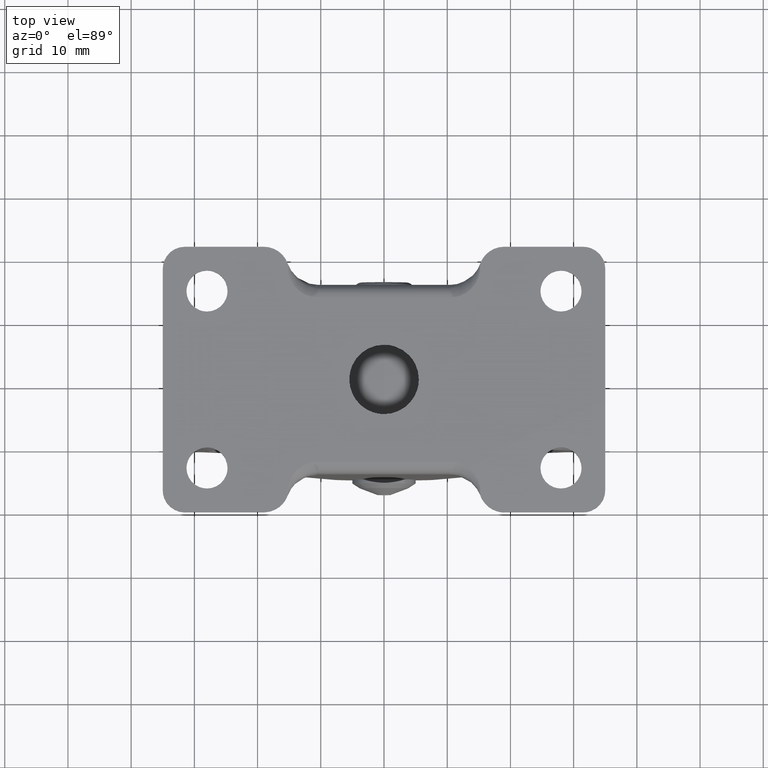
[diagram: clean part render]
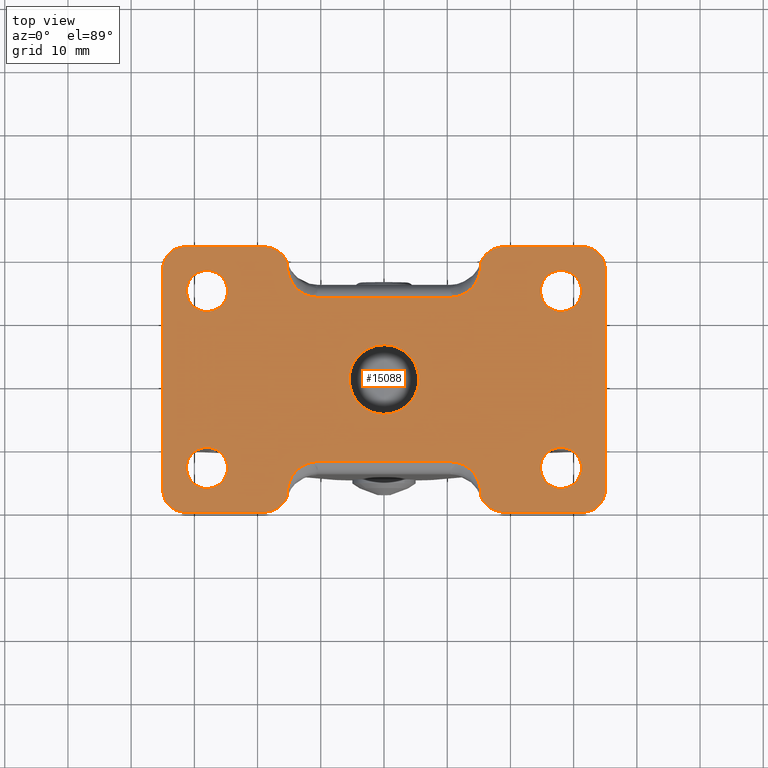
[diagram: same view with one face highlighted and labeled with its STEP entity id]
A machine part, top view. The second image highlights one B-rep face of the part: STEP entity #15088.
In plain terms, the highlighted face is a freeform B-spline surface patch.
Its self-contained STEP definition (entity closure, byte-faithful):
#10203=CARTESIAN_POINT('',(-30.098662021766291,16.481556315056888,54.500000000000000));
#10204=VERTEX_POINT('',#10203);
#10210=CARTESIAN_POINT('',(-31.250000000000000,13.999999999999821,54.500000000000000));
#10211=VERTEX_POINT('',#10210);
#10212=CARTESIAN_POINT('',(-30.098662021766291,16.481556315056888,54.500000000000000));
#10213=CARTESIAN_POINT('',(-30.289593631993519,16.320153419633229,54.500000000000142));
#10214=CARTESIAN_POINT('',(-30.623756243070339,15.963782783558701,54.499999999999908));
#10215=CARTESIAN_POINT('',(-30.974919471281559,15.363699450156201,54.499999999999993));
#10216=CARTESIAN_POINT('',(-31.197123592528381,14.705890184182140,54.499999999999957));
#10217=CARTESIAN_POINT('',(-31.250053086712541,14.250011075617349,54.500000000000057));
#10218=CARTESIAN_POINT('',(-31.250000000000000,13.999999999999821,54.500000000000000));
#10219=B_SPLINE_CURVE_WITH_KNOTS('',3,(#10212,#10213,#10214,#10215,#10216,#10217,#10218),.UNSPECIFIED.,.F.,.U.,(4,1,1,1,4),(0.000000054427843,0.750026817474935,1.455906141507848,2.073600944400972,2.823627226279340),.UNSPECIFIED.);
#10220=EDGE_CURVE('',#10204,#10211,#10219,.T.);
#10222=CARTESIAN_POINT('',(-27.999997487336589,10.750000000000790,54.500000000000000));
#10223=VERTEX_POINT('',#10222);
#10224=CARTESIAN_POINT('',(-31.250000000000000,13.999999999999821,54.500000000000000));
#10225=CARTESIAN_POINT('',(-31.250132946166818,13.680917081636450,54.500000000000107));
#10226=CARTESIAN_POINT('',(-31.163147950713739,13.096040372691871,54.499999999999879));
#10227=CARTESIAN_POINT('',(-30.837456642039761,12.361278064072870,54.500000000000078));
#10228=CARTESIAN_POINT('',(-30.455429074120708,11.846293969000479,54.499999999999957));
#10229=CARTESIAN_POINT('',(-30.011329752884709,11.423456549288680,54.499999999999979));
#10230=CARTESIAN_POINT('',(-29.428346941402900,11.044077837957641,54.500000000000142));
#10231=CARTESIAN_POINT('',(-28.717910768038760,10.799689379102940,54.499999999999758));
#10232=CARTESIAN_POINT('',(-28.212696035304649,10.749990130027840,54.500000000000348));
#10233=CARTESIAN_POINT('',(-27.999997487336589,10.750000000000790,54.500000000000000));
#10234=B_SPLINE_CURVE_WITH_KNOTS('',3,(#10224,#10225,#10226,#10227,#10228,#10229,#10230,#10231,#10232,#10233),.UNSPECIFIED.,.F.,.U.,(4,1,1,1,1,1,1,4),(0.000000086692860,0.957223040980363,1.754939809535310,2.393082988724874,2.871659602705686,3.589599197517273,4.467092946224253,5.105217585302628),.UNSPECIFIED.);
#10235=EDGE_CURVE('',#10211,#10223,#10234,.T.);
#10237=CARTESIAN_POINT('',(-24.750000000000000,13.999999999999821,54.500000000000000));
#10238=VERTEX_POINT('',#10237);
#10239=CARTESIAN_POINT('',(-27.999997487336589,10.750000000000790,54.500000000000000));
#10240=CARTESIAN_POINT('',(-27.734109334711331,10.749946935414020,54.499999999999972));
#10241=CARTESIAN_POINT('',(-27.202347701059281,10.815596493992571,54.500000000000050));
#10242=CARTESIAN_POINT('',(-26.402476081171191,11.124070894893521,54.500000000000050));
#10243=CARTESIAN_POINT('',(-25.754824180438249,11.604377611920910,54.499999999999943));
#10244=CARTESIAN_POINT('',(-25.195437662629850,12.285984790026649,54.500000000000021));
#10245=CARTESIAN_POINT('',(-24.836604796410661,13.069352896952170,54.500000000000007));
#10246=CARTESIAN_POINT('',(-24.749931761451851,13.707532265902350,54.499999999999972));
#10247=CARTESIAN_POINT('',(-24.750000000000000,13.999999999999821,54.500000000000000));
#10248=B_SPLINE_CURVE_WITH_KNOTS('',3,(#10239,#10240,#10241,#10242,#10243,#10244,#10245,#10246,#10247),.UNSPECIFIED.,.F.,.U.,(4,1,1,1,1,1,4),(0.000000090141262,0.797675192338383,1.595393230182955,2.552607427601551,3.190731714922657,4.227772132547955,5.105214752874685),.UNSPECIFIED.);
#10249=EDGE_CURVE('',#10223,#10238,#10248,.T.);
#10251=CARTESIAN_POINT('',(-25.642533843847598,16.237152038890638,54.500000000000000));
#10252=VERTEX_POINT('',#10251);
#10253=CARTESIAN_POINT('',(-24.750000000000000,13.999999999999821,54.500000000000000));
#10254=CARTESIAN_POINT('',(-24.749890455011339,14.308445242736830,54.500000000000078));
#10255=CARTESIAN_POINT('',(-24.823738256325989,14.822429354224051,54.499999999999957));
#10256=CARTESIAN_POINT('',(-25.129937215368091,15.589805069030810,54.500000000000050));
#10257=CARTESIAN_POINT('',(-25.430108791369960,16.013502333321259,54.499999999999950));
#10258=CARTESIAN_POINT('',(-25.642533843847598,16.237152038890638,54.500000000000000));
#10259=B_SPLINE_CURVE_WITH_KNOTS('',3,(#10253,#10254,#10255,#10256,#10257,#10258),.UNSPECIFIED.,.F.,.U.,(4,1,1,4),(0.000000030010311,0.925324171776659,1.542188701382070,2.467516988965990),.UNSPECIFIED.);
#10260=EDGE_CURVE('',#10238,#10252,#10259,.T.);
#10344=CARTESIAN_POINT('',(-28.000002512663450,17.249999999998849,54.500000000000000));
#10345=VERTEX_POINT('',#10344);
#10346=CARTESIAN_POINT('',(-25.642533843847598,16.237152038890638,54.500000000000000));
#10347=CARTESIAN_POINT('',(-25.888266182406429,16.496416521414261,54.499999999999922));
#10348=CARTESIAN_POINT('',(-26.355205525192819,16.848508239658891,54.500000000000142));
#10349=CARTESIAN_POINT('',(-27.175795817750540,17.176630664013409,54.499999999999822));
#10350=CARTESIAN_POINT('',(-27.697762706351071,17.250110710179769,54.500000000000092));
#10351=CARTESIAN_POINT('',(-28.000002512663450,17.249999999998849,54.500000000000000));
#10352=B_SPLINE_CURVE_WITH_KNOTS('',3,(#10346,#10347,#10348,#10349,#10350,#10351),.UNSPECIFIED.,.F.,.U.,(4,1,1,4),(0.000000041698240,1.071577884531071,1.730981596994258,2.637701625867006),.UNSPECIFIED.);
#10353=EDGE_CURVE('',#10252,#10345,#10352,.T.);
#10355=CARTESIAN_POINT('',(-28.000002512663450,17.249999999998849,54.500000000000000));
#10356=CARTESIAN_POINT('',(-28.213891865215491,17.250021008957020,54.499999999999922));
#10357=CARTESIAN_POINT('',(-28.665429299460911,17.205284996907409,54.500000000000107));
#10358=CARTESIAN_POINT('',(-29.394714337322149,16.974019853038339,54.499999999999929));
#10359=CARTESIAN_POINT('',(-29.862825961016750,16.681161505349142,54.499999999999929));
#10360=CARTESIAN_POINT('',(-30.098662021766291,16.481556315056888,54.500000000000000));
#10361=B_SPLINE_CURVE_WITH_KNOTS('',3,(#10355,#10356,#10357,#10358,#10359,#10360),.UNSPECIFIED.,.F.,.U.,(4,1,1,4),(0.000000046549489,0.641682526783467,1.354640293100347,2.281526228236786),.UNSPECIFIED.);
#10362=EDGE_CURVE('',#10345,#10204,#10361,.T.);
#10408=CARTESIAN_POINT('',(-3.551581487506738,4.199556432505808,54.500000000000000));
#10409=VERTEX_POINT('',#10408);
#10415=CARTESIAN_POINT('',(-5.500000000000000,0.0,54.500000000000000));
#10416=VERTEX_POINT('',#10415);
#10417=CARTESIAN_POINT('',(-3.551581487506738,4.199556432505808,54.500000000000000));
#10418=CARTESIAN_POINT('',(-3.817645853050713,3.974587681270802,54.500000000000007));
#10419=CARTESIAN_POINT('',(-4.324278277972796,3.455982112999390,54.500000000000000));
#10420=CARTESIAN_POINT('',(-4.911072461849057,2.554402693640873,54.499999999999979));
#10421=CARTESIAN_POINT('',(-5.374853061112885,1.393595585521495,54.500000000000078));
#10422=CARTESIAN_POINT('',(-5.500203988526193,0.522665930709427,54.499999999999943));
#10423=CARTESIAN_POINT('',(-5.500000000000000,0.0,54.500000000000000));
#10424=B_SPLINE_CURVE_WITH_KNOTS('',3,(#10417,#10418,#10419,#10420,#10421,#10422,#10423),.UNSPECIFIED.,.F.,.U.,(4,1,1,1,4),(0.000000056132643,1.045282946267310,2.165235440639549,3.210511556109384,4.778445867127006),.UNSPECIFIED.);
#10425=EDGE_CURVE('',#10409,#10416,#10424,.T.);
#10427=CARTESIAN_POINT('',(0.000001951524393,-5.499999999999654,54.500000000000007));
#10428=VERTEX_POINT('',#10427);
#10429=CARTESIAN_POINT('',(-5.500000000000000,0.0,54.500000000000000));
#10430=CARTESIAN_POINT('',(-5.500082614784264,-0.427467003456180,54.500000000000092));
#10431=CARTESIAN_POINT('',(-5.397222799853794,-1.304883476031741,54.499999999999972));
#10432=CARTESIAN_POINT('',(-4.954989680161406,-2.494772609935065,54.499999999999829));
#10433=CARTESIAN_POINT('',(-4.294954931975312,-3.495688828122551,54.500000000000171));
#10434=CARTESIAN_POINT('',(-3.607561025024969,-4.183032819444215,54.499999999999531));
#10435=CARTESIAN_POINT('',(-2.840281986038718,-4.737622403526375,54.500000000000362));
#10436=CARTESIAN_POINT('',(-2.072956440565853,-5.123874331680763,54.499999999999737));
#10437=CARTESIAN_POINT('',(-1.079886826557474,-5.425093989387877,54.499999999999943));
#10438=CARTESIAN_POINT('',(-0.404974744698217,-5.500080286451038,54.500000000000099));
#10439=CARTESIAN_POINT('',(0.000001951524393,-5.499999999999654,54.500000000000007));
#10440=B_SPLINE_CURVE_WITH_KNOTS('',3,(#10429,#10430,#10431,#10432,#10433,#10434,#10435,#10436,#10437,#10438,#10439),.UNSPECIFIED.,.F.,.U.,(4,1,1,1,1,1,1,1,4),(0.000000158819677,1.282395314202433,2.632340969324553,3.779758377492855,4.859675382802022,5.534632747226993,6.614570213763700,7.424520020508909,8.639435105743006),.UNSPECIFIED.);
#10441=EDGE_CURVE('',#10416,#10428,#10440,.T.);
#10443=CARTESIAN_POINT('',(5.500000000000000,0.0,54.500000000000000));
#10444=VERTEX_POINT('',#10443);
#10445=CARTESIAN_POINT('',(0.000001951524393,-5.499999999999654,54.500000000000007));
#10446=CARTESIAN_POINT('',(0.449981801813214,-5.500122590485293,54.499999999999950));
#10447=CARTESIAN_POINT('',(1.169865283668682,-5.411122334968733,54.500000000000107));
#10448=CARTESIAN_POINT('',(2.219490639431420,-5.064358707598801,54.499999999999858));
#10449=CARTESIAN_POINT('',(3.253610096883602,-4.503673504515232,54.500000000000092));
#10450=CARTESIAN_POINT('',(4.157623955969668,-3.674044497950319,54.500000000000142));
#10451=CARTESIAN_POINT('',(4.885802512757296,-2.612617881110359,54.499999999999652));
#10452=CARTESIAN_POINT('',(5.371584335282459,-1.439827746535762,54.499999999999957));
#10453=CARTESIAN_POINT('',(5.500153575952922,-0.494974448824766,54.500000000000057));
#10454=CARTESIAN_POINT('',(5.500000000000000,0.0,54.500000000000000));
#10455=B_SPLINE_CURVE_WITH_KNOTS('',3,(#10445,#10446,#10447,#10448,#10449,#10450,#10451,#10452,#10453,#10454),.UNSPECIFIED.,.F.,.U.,(4,1,1,1,1,1,1,4),(0.000000159498773,1.349908395228373,2.159859814762077,3.307310353138192,4.859674148560570,5.804601421483603,7.154548044500613,8.639432905906384),.UNSPECIFIED.);
#10456=EDGE_CURVE('',#10428,#10444,#10455,.T.);
#10458=CARTESIAN_POINT('',(3.989558655286062,3.785949864524715,54.500000000000000));
#10459=VERTEX_POINT('',#10458);
#10460=CARTESIAN_POINT('',(5.500000000000000,0.0,54.500000000000000));
#10461=CARTESIAN_POINT('',(5.500121009257288,0.478477032337747,54.500000000000128));
#10462=CARTESIAN_POINT('',(5.380082678224039,1.391848400741346,54.499999999999879));
#10463=CARTESIAN_POINT('',(4.860621788629698,2.693775271517092,54.499999999999993));
#10464=CARTESIAN_POINT('',(4.319033950110164,3.438974674624689,54.500000000000121));
#10465=CARTESIAN_POINT('',(3.989558655286062,3.785949864524715,54.500000000000000));
#10466=B_SPLINE_CURVE_WITH_KNOTS('',3,(#10460,#10461,#10462,#10463,#10464,#10465),.UNSPECIFIED.,.F.,.U.,(4,1,1,4),(0.000000036944354,1.435407526672285,2.740317090212546,4.175724579951016),.UNSPECIFIED.);
#10467=EDGE_CURVE('',#10444,#10459,#10466,.T.);
#10552=CARTESIAN_POINT('',(-0.000001951524386,5.499999999999654,54.500000000000000));
#10553=VERTEX_POINT('',#10552);
#10554=CARTESIAN_POINT('',(3.989558655286062,3.785949864524715,54.500000000000000));
#10555=CARTESIAN_POINT('',(3.557727565848417,4.241570516741221,54.499999999999979));
#10556=CARTESIAN_POINT('',(2.668297806111910,4.903538814556406,54.499999999999943));
#10557=CARTESIAN_POINT('',(1.255401769995077,5.406942228657289,54.500000000000092));
#10558=CARTESIAN_POINT('',(0.395217559279416,5.500049226223045,54.499999999999929));
#10559=CARTESIAN_POINT('',(-0.000001951524386,5.499999999999654,54.500000000000000));
#10560=B_SPLINE_CURVE_WITH_KNOTS('',3,(#10554,#10555,#10556,#10557,#10558,#10559),.UNSPECIFIED.,.F.,.U.,(4,1,1,4),(0.000000045486602,1.883137248081837,3.278036423979155,4.463711175377533),.UNSPECIFIED.);
#10561=EDGE_CURVE('',#10459,#10553,#10560,.T.);
#10563=CARTESIAN_POINT('',(-0.000001951524386,5.499999999999654,54.500000000000000));
#10564=CARTESIAN_POINT('',(-0.563090274358818,5.500247989562090,54.500000000000163));
#10565=CARTESIAN_POINT('',(-1.508062500909302,5.353578218445251,54.499999999999602));
#10566=CARTESIAN_POINT('',(-2.694088004111650,4.836082529909923,54.500000000000483));
#10567=CARTESIAN_POINT('',(-3.290574189734612,4.420330460617073,54.499999999999247));
#10568=CARTESIAN_POINT('',(-3.551581487506738,4.199556432505808,54.500000000000000));
#10569=B_SPLINE_CURVE_WITH_KNOTS('',3,(#10563,#10564,#10565,#10566,#10567,#10568),.UNSPECIFIED.,.F.,.U.,(4,1,1,4),(0.000000031835319,1.689190963203634,2.835413059993098,3.860988398594049),.UNSPECIFIED.);
#10570=EDGE_CURVE('',#10553,#10409,#10569,.T.);
#10615=CARTESIAN_POINT('',(25.901337978233709,16.481556315056888,54.500000000000000));
#10616=VERTEX_POINT('',#10615);
#10622=CARTESIAN_POINT('',(24.750000000000000,13.999999999999821,54.500000000000000));
#10623=VERTEX_POINT('',#10622);
#10624=CARTESIAN_POINT('',(25.901337978233709,16.481556315056888,54.500000000000000));
#10625=CARTESIAN_POINT('',(25.586597325725709,16.215935121780259,54.499999999999837));
#10626=CARTESIAN_POINT('',(25.145369657740272,15.667761962565191,54.500000000000547));
#10627=CARTESIAN_POINT('',(24.811359314912490,14.779418879792770,54.499999999999247));
#10628=CARTESIAN_POINT('',(24.749956035333138,14.250008231865021,54.500000000000270));
#10629=CARTESIAN_POINT('',(24.750000000000000,13.999999999999821,54.500000000000000));
#10630=B_SPLINE_CURVE_WITH_KNOTS('',3,(#10624,#10625,#10626,#10627,#10628,#10629),.UNSPECIFIED.,.F.,.U.,(4,1,1,4),(0.000000054428427,1.235348320230913,2.073600944401017,2.823627226279369),.UNSPECIFIED.);
#10631=EDGE_CURVE('',#10616,#10623,#10630,.T.);
#10633=CARTESIAN_POINT('',(28.000002512663421,10.750000000000790,54.500000000000000));
#10634=VERTEX_POINT('',#10633);
#10635=CARTESIAN_POINT('',(24.750000000000000,13.999999999999821,54.500000000000000));
#10636=CARTESIAN_POINT('',(24.749492637446469,13.574474682246580,54.500000000000057));
#10637=CARTESIAN_POINT('',(24.877231928833339,12.936766816790319,54.499999999999922));
#10638=CARTESIAN_POINT('',(25.330604596388849,12.088430259959081,54.500000000000142));
#10639=CARTESIAN_POINT('',(25.890150640052511,11.471075004886220,54.499999999999829));
#10640=CARTESIAN_POINT('',(26.803914168642660,10.907965366333251,54.500000000000021));
#10641=CARTESIAN_POINT('',(27.547877542002059,10.749396743864679,54.499999999999979));
#10642=CARTESIAN_POINT('',(28.000002512663421,10.750000000000790,54.500000000000000));
#10643=B_SPLINE_CURVE_WITH_KNOTS('',3,(#10635,#10636,#10637,#10638,#10639,#10640,#10641,#10642),.UNSPECIFIED.,.F.,.U.,(4,1,1,1,1,4),(0.000000086696044,1.276304688300273,1.914482669181434,2.871659602706271,3.749143463036680,5.105217585302627),.UNSPECIFIED.);
#10644=EDGE_CURVE('',#10623,#10634,#10643,.T.);
#10646=CARTESIAN_POINT('',(31.250000000000000,13.999999999999821,54.500000000000000));
#10647=VERTEX_POINT('',#10646);
#10648=CARTESIAN_POINT('',(28.000002512663421,10.750000000000790,54.500000000000000));
#10649=CARTESIAN_POINT('',(28.319087748876889,10.749859633605009,54.500000000000099));
#10650=CARTESIAN_POINT('',(28.850778331705339,10.828972286959470,54.499999999999879));
#10651=CARTESIAN_POINT('',(29.541930330976601,11.115282108733579,54.500000000000178));
#10652=CARTESIAN_POINT('',(30.075073635939152,11.471519427027131,54.499999999999837));
#10653=CARTESIAN_POINT('',(30.547388628900968,11.943808562981790,54.500000000000107));
#10654=CARTESIAN_POINT('',(30.912088728815540,12.504404049906690,54.500000000000007));
#10655=CARTESIAN_POINT('',(31.181324379667270,13.202375589806680,54.500000000000057));
#10656=CARTESIAN_POINT('',(31.250099396022630,13.707517738912481,54.500000000000007));
#10657=CARTESIAN_POINT('',(31.250000000000000,13.999999999999821,54.500000000000000));
#10658=B_SPLINE_CURVE_WITH_KNOTS('',3,(#10648,#10649,#10650,#10651,#10652,#10653,#10654,#10655,#10656,#10657),.UNSPECIFIED.,.F.,.U.,(4,1,1,1,1,1,1,4),(0.000000090141303,0.957222512408237,1.595393230183062,2.233553047199859,2.871658013112949,3.589597204805204,4.227772132547965,5.105214752874683),.UNSPECIFIED.);
#10659=EDGE_CURVE('',#10634,#10647,#10658,.T.);
#10661=CARTESIAN_POINT('',(30.357466156152402,16.237152038890638,54.500000000000000));
#10662=VERTEX_POINT('',#10661);
#10663=CARTESIAN_POINT('',(31.250000000000000,13.999999999999821,54.500000000000000));
#10664=CARTESIAN_POINT('',(31.250257943180081,14.359882358706940,54.500000000000021));
#10665=CARTESIAN_POINT('',(31.163705069665259,14.873759082232000,54.499999999999993));
#10666=CARTESIAN_POINT('',(30.840038679207971,15.632173680136420,54.500000000000107));
#10667=CARTESIAN_POINT('',(30.569891863876482,16.013501852692400,54.499999999999950));
#10668=CARTESIAN_POINT('',(30.357466156152402,16.237152038890638,54.500000000000000));
#10669=B_SPLINE_CURVE_WITH_KNOTS('',3,(#10663,#10664,#10665,#10666,#10667,#10668),.UNSPECIFIED.,.F.,.U.,(4,1,1,4),(0.000000030009900,1.079542450259400,1.542188701381952,2.467516988965981),.UNSPECIFIED.);
#10670=EDGE_CURVE('',#10647,#10662,#10669,.T.);
#10755=CARTESIAN_POINT('',(27.999997487336550,17.249999999998849,54.500000000000000));
#10756=VERTEX_POINT('',#10755);
#10757=CARTESIAN_POINT('',(30.357466156152402,16.237152038890638,54.500000000000000));
#10758=CARTESIAN_POINT('',(30.074022255614111,16.536427315968101,54.500000000000000));
#10759=CARTESIAN_POINT('',(29.527782945169211,16.926694636762932,54.500000000000057));
#10760=CARTESIAN_POINT('',(28.686868009203721,17.202440683028101,54.499999999999972));
#10761=CARTESIAN_POINT('',(28.219798530362748,17.250028353984259,54.499999999999950));
#10762=CARTESIAN_POINT('',(27.999997487336550,17.249999999998849,54.500000000000000));
#10763=B_SPLINE_CURVE_WITH_KNOTS('',3,(#10757,#10758,#10759,#10760,#10761,#10762),.UNSPECIFIED.,.F.,.U.,(4,1,1,4),(0.000000041698243,1.236428597097027,1.978276229775139,2.637701625867015),.UNSPECIFIED.);
#10764=EDGE_CURVE('',#10662,#10756,#10763,.T.);
#10766=CARTESIAN_POINT('',(27.999997487336550,17.249999999998849,54.500000000000000));
#10767=CARTESIAN_POINT('',(27.786110797539799,17.250009943536199,54.499999999999979));
#10768=CARTESIAN_POINT('',(27.287016222617670,17.200634740833401,54.500000000000043));
#10769=CARTESIAN_POINT('',(26.561098874897660,16.952723394613329,54.500000000000028));
#10770=CARTESIAN_POINT('',(26.100913327183282,16.650411275361360,54.500000000000028));
#10771=CARTESIAN_POINT('',(25.901337978233709,16.481556315056888,54.500000000000000));
#10772=B_SPLINE_CURVE_WITH_KNOTS('',3,(#10766,#10767,#10768,#10769,#10770,#10771),.UNSPECIFIED.,.F.,.U.,(4,1,1,4),(0.000000046549964,0.641682526783798,1.497249392994198,2.281526228236787),.UNSPECIFIED.);
#10773=EDGE_CURVE('',#10756,#10616,#10772,.T.);
#10819=CARTESIAN_POINT('',(25.901337978233709,-11.518443684942930,54.500000000000000));
#10820=VERTEX_POINT('',#10819);
#10826=CARTESIAN_POINT('',(24.750000000000000,-14.0,54.500000000000000));
#10827=VERTEX_POINT('',#10826);
#10828=CARTESIAN_POINT('',(25.901337978233709,-11.518443684942930,54.500000000000000));
#10829=CARTESIAN_POINT('',(25.710404473696819,-11.679846176166780,54.499999999999972));
#10830=CARTESIAN_POINT('',(25.376251511416712,-12.036219050234690,54.499999999999993));
#10831=CARTESIAN_POINT('',(25.010119908248509,-12.661832029947540,54.500000000000227));
#10832=CARTESIAN_POINT('',(24.796581984695159,-13.323508103378069,54.499999999999837));
#10833=CARTESIAN_POINT('',(24.749973099443011,-13.779404975349809,54.499999999999908));
#10834=CARTESIAN_POINT('',(24.750000000000000,-14.0,54.500000000000000));
#10835=B_SPLINE_CURVE_WITH_KNOTS('',3,(#10828,#10829,#10830,#10831,#10832,#10833,#10834),.UNSPECIFIED.,.F.,.U.,(4,1,1,1,4),(0.000000054427348,0.750026817474432,1.455906141507604,2.161839964545433,2.823627226279365),.UNSPECIFIED.);
#10836=EDGE_CURVE('',#10820,#10827,#10835,.T.);
#10838=CARTESIAN_POINT('',(28.000002512663421,-17.249999999999030,54.500000000000000));
#10839=VERTEX_POINT('',#10838);
#10840=CARTESIAN_POINT('',(24.750000000000000,-14.0,54.500000000000000));
#10841=CARTESIAN_POINT('',(24.749858022207171,-14.319086611081691,54.499999999999979));
#10842=CARTESIAN_POINT('',(24.821072617667070,-14.797598549055460,54.500000000000121));
#10843=CARTESIAN_POINT('',(25.070586135536910,-15.444347090542241,54.499999999999851));
#10844=CARTESIAN_POINT('',(25.372742041358858,-15.948518140127980,54.500000000000249));
#10845=CARTESIAN_POINT('',(25.767484941122500,-16.384005867961001,54.499999999999773));
#10846=CARTESIAN_POINT('',(26.250893953833561,-16.761272216647050,54.500000000000107));
#10847=CARTESIAN_POINT('',(26.963233206669521,-17.130993274755369,54.499999999999879));
#10848=CARTESIAN_POINT('',(27.601112285478582,-17.250356390604399,54.500000000000121));
#10849=CARTESIAN_POINT('',(28.000002512663421,-17.249999999999030,54.500000000000000));
#10850=B_SPLINE_CURVE_WITH_KNOTS('',3,(#10840,#10841,#10842,#10843,#10844,#10845,#10846,#10847,#10848,#10849),.UNSPECIFIED.,.F.,.U.,(4,1,1,1,1,1,1,4),(0.000000086698879,0.957223040984474,1.435848071559842,2.074021028418556,2.712131882003235,3.190733485430221,3.908682968264571,5.105217585302653),.UNSPECIFIED.);
#10851=EDGE_CURVE('',#10827,#10839,#10850,.T.);
#10853=CARTESIAN_POINT('',(31.250000000000000,-14.0,54.500000000000000));
#10854=VERTEX_POINT('',#10853);
#10855=CARTESIAN_POINT('',(28.000002512663421,-17.249999999999030,54.500000000000000));
#10856=CARTESIAN_POINT('',(28.319086272745711,-17.250132478931121,54.499999999999950));
#10857=CARTESIAN_POINT('',(28.903961666329550,-17.163151507544260,54.500000000000028));
#10858=CARTESIAN_POINT('',(29.638718774062379,-16.837451156377629,54.500000000000128));
#10859=CARTESIAN_POINT('',(30.196617423087019,-16.423601453894051,54.499999999999822));
#10860=CARTESIAN_POINT('',(30.717106392175520,-15.849608519247740,54.500000000000121));
#10861=CARTESIAN_POINT('',(31.138735329382939,-15.036917381756140,54.499999999999957));
#10862=CARTESIAN_POINT('',(31.250155848371211,-14.345666886076989,54.500000000000043));
#10863=CARTESIAN_POINT('',(31.250000000000000,-14.0,54.500000000000000));
#10864=B_SPLINE_CURVE_WITH_KNOTS('',3,(#10855,#10856,#10857,#10858,#10859,#10860,#10861,#10862,#10863),.UNSPECIFIED.,.F.,.U.,(4,1,1,1,1,1,4),(0.000000090141243,0.957222512408260,1.754938838718091,2.393081667100491,3.031191769252521,4.068224976712336,5.105214752874681),.UNSPECIFIED.);
#10865=EDGE_CURVE('',#10839,#10854,#10864,.T.);
#10867=CARTESIAN_POINT('',(30.357466156152402,-11.762847961109181,54.500000000000000));
#10868=VERTEX_POINT('',#10867);
#10869=CARTESIAN_POINT('',(31.250000000000000,-14.0,54.500000000000000));
#10870=CARTESIAN_POINT('',(31.250130640266828,-13.691550101809380,54.500000000000000));
#10871=CARTESIAN_POINT('',(31.176236096421189,-13.177578610330640,54.499999999999979));
#10872=CARTESIAN_POINT('',(30.870088301986890,-12.410181078715860,54.500000000000043));
#10873=CARTESIAN_POINT('',(30.569871987056089,-11.986510360781329,54.499999999999957));
#10874=CARTESIAN_POINT('',(30.357466156152402,-11.762847961109181,54.500000000000000));
#10875=B_SPLINE_CURVE_WITH_KNOTS('',3,(#10869,#10870,#10871,#10872,#10873,#10874),.UNSPECIFIED.,.F.,.U.,(4,1,1,4),(0.000000030009423,0.925324171776187,1.542188701381824,2.467516988965990),.UNSPECIFIED.);
#10876=EDGE_CURVE('',#10854,#10868,#10875,.T.);
#10958=CARTESIAN_POINT('',(27.999997487336550,-10.750000000000970,54.500000000000000));
#10959=VERTEX_POINT('',#10958);
#10960=CARTESIAN_POINT('',(30.357466156152402,-11.762847961109181,54.500000000000000));
#10961=CARTESIAN_POINT('',(30.111735558880451,-11.503583425180549,54.500000000000092));
#10962=CARTESIAN_POINT('',(29.644794096034111,-11.151491938991720,54.500000000000007));
#10963=CARTESIAN_POINT('',(28.824202381991530,-10.823369683984559,54.499999999999993));
#10964=CARTESIAN_POINT('',(28.302239087012431,-10.749888517341310,54.499999999999972));
#10965=CARTESIAN_POINT('',(27.999997487336550,-10.750000000000970,54.500000000000000));
#10966=B_SPLINE_CURVE_WITH_KNOTS('',3,(#10960,#10961,#10962,#10963,#10964,#10965),.UNSPECIFIED.,.F.,.U.,(4,1,1,4),(0.000000041698270,1.071577884531114,1.730981596994201,2.637701625867017),.UNSPECIFIED.);
#10967=EDGE_CURVE('',#10868,#10959,#10966,.T.);
#10969=CARTESIAN_POINT('',(27.999997487336550,-10.750000000000970,54.500000000000000));
#10970=CARTESIAN_POINT('',(27.643482721730859,-10.749773516239330,54.500000000000057));
#10971=CARTESIAN_POINT('',(26.883163940392251,-10.876474278197341,54.499999999999943));
#10972=CARTESIAN_POINT('',(26.209612826136450,-11.257221200851429,54.500000000000057));
#10973=CARTESIAN_POINT('',(25.901337978233709,-11.518443684942930,54.500000000000000));
#10974=B_SPLINE_CURVE_WITH_KNOTS('',3,(#10969,#10970,#10971,#10972,#10973),.UNSPECIFIED.,.F.,.U.,(4,1,4),(0.000000046549110,1.069479557846765,2.281526228236798),.UNSPECIFIED.);
#10975=EDGE_CURVE('',#10959,#10820,#10974,.T.);
#11021=CARTESIAN_POINT('',(-30.098662021766291,-11.518443684942930,54.500000000000000));
#11022=VERTEX_POINT('',#11021);
#11028=CARTESIAN_POINT('',(-31.250000000000000,-14.0,54.500000000000000));
#11029=VERTEX_POINT('',#11028);
#11030=CARTESIAN_POINT('',(-30.098662021766291,-11.518443684942930,54.500000000000000));
#11031=CARTESIAN_POINT('',(-30.413402620340960,-11.784064773099519,54.499999999999922));
#11032=CARTESIAN_POINT('',(-30.854630362981570,-12.332238164584270,54.500000000000057));
#11033=CARTESIAN_POINT('',(-31.188640670235870,-13.220580893901920,54.500000000000050));
#11034=CARTESIAN_POINT('',(-31.250043998546431,-13.749991946350510,54.499999999999837));
#11035=CARTESIAN_POINT('',(-31.250000000000000,-14.0,54.500000000000000));
#11036=B_SPLINE_CURVE_WITH_KNOTS('',3,(#11030,#11031,#11032,#11033,#11034,#11035),.UNSPECIFIED.,.F.,.U.,(4,1,1,4),(0.000000054428794,1.235348320231212,2.073600944401170,2.823627226279337),.UNSPECIFIED.);
#11037=EDGE_CURVE('',#11022,#11029,#11036,.T.);
#11039=CARTESIAN_POINT('',(-27.999997487336589,-17.249999999999030,54.500000000000000));
#11040=VERTEX_POINT('',#11039);
#11041=CARTESIAN_POINT('',(-31.250000000000000,-14.0,54.500000000000000));
#11042=CARTESIAN_POINT('',(-31.250485019255439,-14.425520357349541,54.499999999999950));
#11043=CARTESIAN_POINT('',(-31.133470805370500,-15.010116574902190,54.500000000000128));
#11044=CARTESIAN_POINT('',(-30.773712016655679,-15.724510752155560,54.499999999999957));
#11045=CARTESIAN_POINT('',(-30.344128121775540,-16.304058202993549,54.500000000000043));
#11046=CARTESIAN_POINT('',(-29.734469389488179,-16.791988218411870,54.500000000000078));
#11047=CARTESIAN_POINT('',(-28.903906447511272,-17.160030480620200,54.499999999999822));
#11048=CARTESIAN_POINT('',(-28.345676401613709,-17.250185698498001,54.500000000000327));
#11049=CARTESIAN_POINT('',(-27.999997487336589,-17.249999999999030,54.500000000000000));
#11050=B_SPLINE_CURVE_WITH_KNOTS('',3,(#11041,#11042,#11043,#11044,#11045,#11046,#11047,#11048,#11049),.UNSPECIFIED.,.F.,.U.,(4,1,1,1,1,1,4),(0.000000086695085,1.276304688299669,1.754939809536283,2.393082988725608,3.430051953235711,4.068227234915553,5.105217585302651),.UNSPECIFIED.);
#11051=EDGE_CURVE('',#11029,#11040,#11050,.T.);
#11053=CARTESIAN_POINT('',(-24.750000000000000,-14.0,54.500000000000000));
#11054=VERTEX_POINT('',#11053);
#11055=CARTESIAN_POINT('',(-27.999997487336589,-17.249999999999030,54.500000000000000));
#11056=CARTESIAN_POINT('',(-27.574473125803699,-17.250490338528579,54.499999999999950));
#11057=CARTESIAN_POINT('',(-26.989895579575482,-17.133455006486599,54.500000000000000));
#11058=CARTESIAN_POINT('',(-26.227824069175771,-16.749778505594438,54.499999999999993));
#11059=CARTESIAN_POINT('',(-25.720964275862091,-16.354254503363482,54.500000000000128));
#11060=CARTESIAN_POINT('',(-25.263372432204779,-15.796596415834760,54.499999999999943));
#11061=CARTESIAN_POINT('',(-24.868964233411958,-15.036773912979150,54.500000000000000));
#11062=CARTESIAN_POINT('',(-24.749690533944982,-14.398882433936601,54.500000000000000));
#11063=CARTESIAN_POINT('',(-24.750000000000000,-14.0,54.500000000000000));
#11064=B_SPLINE_CURVE_WITH_KNOTS('',3,(#11055,#11056,#11057,#11058,#11059,#11060,#11061,#11062,#11063),.UNSPECIFIED.,.F.,.U.,(4,1,1,1,1,1,4),(0.000000090141664,1.276303982895200,1.754938838718465,2.552607427601535,3.190731714922597,3.908680799652778,5.105214752874683),.UNSPECIFIED.);
#11065=EDGE_CURVE('',#11040,#11054,#11064,.T.);
#11067=CARTESIAN_POINT('',(-25.642533843847598,-11.762847961109181,54.500000000000000));
#11068=VERTEX_POINT('',#11067);
#11069=CARTESIAN_POINT('',(-24.750000000000000,-14.0,54.500000000000000));
#11070=CARTESIAN_POINT('',(-24.749885626976130,-13.691552293114720,54.499999999999993));
#11071=CARTESIAN_POINT('',(-24.823751933495348,-13.177577022430761,54.499999999999908));
#11072=CARTESIAN_POINT('',(-25.129920368976919,-12.410190761795461,54.500000000000163));
#11073=CARTESIAN_POINT('',(-25.430115652288869,-11.986499223948080,54.499999999999922));
#11074=CARTESIAN_POINT('',(-25.642533843847598,-11.762847961109181,54.500000000000000));
#11075=B_SPLINE_CURVE_WITH_KNOTS('',3,(#11069,#11070,#11071,#11072,#11073,#11074),.UNSPECIFIED.,.F.,.U.,(4,1,1,4),(0.000000030009663,0.925324171776348,1.542188701381904,2.467516988965979),.UNSPECIFIED.);
#11076=EDGE_CURVE('',#11054,#11068,#11075,.T.);
#11160=CARTESIAN_POINT('',(-28.000002512663450,-10.750000000000970,54.500000000000000));
#11161=VERTEX_POINT('',#11160);
#11162=CARTESIAN_POINT('',(-25.642533843847598,-11.762847961109181,54.500000000000000));
#11163=CARTESIAN_POINT('',(-25.888250405846900,-11.503560236496069,54.499999999999957));
#11164=CARTESIAN_POINT('',(-26.355217370953060,-11.151510177543051,54.500000000000213));
#11165=CARTESIAN_POINT('',(-27.175798003726399,-10.823369083677910,54.499999999999737));
#11166=CARTESIAN_POINT('',(-27.697759954862018,-10.749887049873109,54.500000000000213));
#11167=CARTESIAN_POINT('',(-28.000002512663450,-10.750000000000970,54.500000000000000));
#11168=B_SPLINE_CURVE_WITH_KNOTS('',3,(#11162,#11163,#11164,#11165,#11166,#11167),.UNSPECIFIED.,.F.,.U.,(4,1,1,4),(0.000000041698826,1.071577884531285,1.730981596994307,2.637701625867010),.UNSPECIFIED.);
#11169=EDGE_CURVE('',#11068,#11161,#11168,.T.);
#11171=CARTESIAN_POINT('',(-28.000002512663450,-10.750000000000970,54.500000000000000));
#11172=CARTESIAN_POINT('',(-28.356518913137151,-10.749773474794731,54.500000000000078));
#11173=CARTESIAN_POINT('',(-29.116833817528939,-10.876473815258359,54.499999999999879));
#11174=CARTESIAN_POINT('',(-29.790388589677359,-11.257221528866401,54.500000000000092));
#11175=CARTESIAN_POINT('',(-30.098662021766291,-11.518443684942930,54.500000000000000));
#11176=B_SPLINE_CURVE_WITH_KNOTS('',3,(#11171,#11172,#11173,#11174,#11175),.UNSPECIFIED.,.F.,.U.,(4,1,4),(0.000000046549817,1.069479557846980,2.281526228236794),.UNSPECIFIED.);
#11177=EDGE_CURVE('',#11161,#11022,#11176,.T.);
#13059=CARTESIAN_POINT('',(-15.228765913306200,18.333339215413350,54.500000000000000));
#13060=VERTEX_POINT('',#13059);
#13088=CARTESIAN_POINT('',(-10.514711081367540,13.0,54.500000000000000));
#13089=VERTEX_POINT('',#13088);
#13090=CARTESIAN_POINT('',(-10.514711081367540,13.0,54.500000000000000));
#13091=CARTESIAN_POINT('',(-10.973746741508650,13.006298937426971,54.500000000000021));
#13092=CARTESIAN_POINT('',(-11.785684418344420,13.135406460764941,54.499999999999922));
#13093=CARTESIAN_POINT('',(-12.921230267663541,13.630263894709140,54.500000000000078));
#13094=CARTESIAN_POINT('',(-13.791174988202901,14.294044257118870,54.500000000000121));
#13095=CARTESIAN_POINT('',(-14.446077199692830,15.085589113985710,54.499999999999687));
#13096=CARTESIAN_POINT('',(-14.900306184884551,15.911854982708951,54.500000000000277));
#13097=CARTESIAN_POINT('',(-15.243216247696790,16.991639097708202,54.499999999999808));
#13098=CARTESIAN_POINT('',(-15.283490627710870,17.835515033993602,54.499999999999517));
#13099=CARTESIAN_POINT('',(-15.228765913306200,18.333339215413350,54.500000000000000));
#13100=B_SPLINE_CURVE_WITH_KNOTS('',3,(#13090,#13091,#13092,#13093,#13094,#13095,#13096,#13097,#13098,#13099),.UNSPECIFIED.,.F.,.U.,(4,1,1,1,1,1,1,4),(0.000000198143787,1.377188438123234,2.441393136828872,3.693392087241470,4.632373196909835,5.508762386529194,6.510384342738773,8.012764423522684),.UNSPECIFIED.);
#13101=EDGE_CURVE('',#13089,#13060,#13100,.T.);
#13131=CARTESIAN_POINT('',(10.514709999999999,13.0,54.500000000000000));
#13132=VERTEX_POINT('',#13131);
#13152=CARTESIAN_POINT('',(10.514709999999999,13.0,54.500000000000000));
#13153=CARTESIAN_POINT('',(-10.514711081367540,13.0,54.500000000000000));
#13154=QUASI_UNIFORM_CURVE('',1,(#13152,#13153),.UNSPECIFIED.,.F.,.U.);
#13155=EDGE_CURVE('',#13132,#13089,#13154,.T.);
#13186=CARTESIAN_POINT('',(15.228760706250251,18.333348183459801,54.500000000000000));
#13187=VERTEX_POINT('',#13186);
#13188=CARTESIAN_POINT('',(15.228760706250251,18.333348183459801,54.500000000000000));
#13189=CARTESIAN_POINT('',(15.262958057198381,18.022192235550470,54.500000000000107));
#13190=CARTESIAN_POINT('',(15.270823197293719,17.351234425395020,54.499999999999908));
#13191=CARTESIAN_POINT('',(15.086273235291641,16.424577121815400,54.500000000000007));
#13192=CARTESIAN_POINT('',(14.702330522416830,15.495445602297311,54.500000000000007));
#13193=CARTESIAN_POINT('',(14.091212226144959,14.589671202439019,54.499999999999972));
#13194=CARTESIAN_POINT('',(13.238495349520550,13.836854045974480,54.500000000000227));
#13195=CARTESIAN_POINT('',(12.405400159225270,13.393798734847300,54.500000000000107));
#13196=CARTESIAN_POINT('',(11.536031770852579,13.093369651885309,54.499999999999687));
#13197=CARTESIAN_POINT('',(10.932068084583349,13.005595585939210,54.500000000001549));
#13198=CARTESIAN_POINT('',(10.514709999999999,13.0,54.500000000000000));
#13199=B_SPLINE_CURVE_WITH_KNOTS('',3,(#13188,#13189,#13190,#13191,#13192,#13193,#13194,#13195,#13196,#13197,#13198),.UNSPECIFIED.,.F.,.U.,(4,1,1,1,1,1,1,1,4),(0.000000198524995,0.939097884458780,2.003423730239360,2.817338622883633,3.944293558210632,5.258983234044362,6.198095699102727,6.761558290299985,8.013694286795349),.UNSPECIFIED.);
#13200=EDGE_CURVE('',#13187,#13132,#13199,.T.);
#13256=CARTESIAN_POINT('',(-10.514711081367521,-13.0,54.500000000000000));
#13257=VERTEX_POINT('',#13256);
#13269=CARTESIAN_POINT('',(-15.228764935478599,-18.333332562780399,54.500000000000000));
#13270=VERTEX_POINT('',#13269);
#13271=CARTESIAN_POINT('',(-15.228764935478599,-18.333332562780399,54.500000000000000));
#13272=CARTESIAN_POINT('',(-15.276769895141459,-17.897711034859899,54.500000000000057));
#13273=CARTESIAN_POINT('',(-15.256904215051531,-17.181826107823170,54.499999999999901));
#13274=CARTESIAN_POINT('',(-14.978637705850810,-16.085606360285400,54.500000000000192));
#13275=CARTESIAN_POINT('',(-14.527065408742461,-15.181953449370370,54.499999999999687));
#13276=CARTESIAN_POINT('',(-13.925380941410760,-14.455071371212890,54.500000000000199));
#13277=CARTESIAN_POINT('',(-13.247426382875419,-13.864245708565230,54.500000000000149));
#13278=CARTESIAN_POINT('',(-12.542258361164890,-13.446811474423599,54.499999999999503));
#13279=CARTESIAN_POINT('',(-11.577690927623820,-13.099408904662670,54.500000000000611));
#13280=CARTESIAN_POINT('',(-10.932065116992430,-13.005601884552281,54.499999999999460));
#13281=CARTESIAN_POINT('',(-10.514711081367521,-13.0,54.500000000000000));
#13282=B_SPLINE_CURVE_WITH_KNOTS('',3,(#13271,#13272,#13273,#13274,#13275,#13276,#13277,#13278,#13279,#13280,#13281),.UNSPECIFIED.,.F.,.U.,(4,1,1,1,1,1,1,1,4),(0.000000198515997,1.314723751699041,2.128636766392129,3.380780620670448,4.319868398228808,4.945942532740851,6.072870180144783,6.761547933606089,8.013682012196689),.UNSPECIFIED.);
#13283=EDGE_CURVE('',#13270,#13257,#13282,.T.);
#13326=CARTESIAN_POINT('',(10.514709999999999,-13.0,54.500000000000000));
#13327=VERTEX_POINT('',#13326);
#13339=CARTESIAN_POINT('',(-10.514711081367521,-13.0,54.500000000000000));
#13340=CARTESIAN_POINT('',(10.514709999999999,-13.0,54.500000000000000));
#13341=QUASI_UNIFORM_CURVE('',1,(#13339,#13340),.UNSPECIFIED.,.F.,.U.);
#13342=EDGE_CURVE('',#13257,#13327,#13341,.T.);
#13379=CARTESIAN_POINT('',(15.228760485757951,-18.333348261415651,54.500000000000000));
#13380=VERTEX_POINT('',#13379);
#13406=CARTESIAN_POINT('',(10.514709999999999,-13.0,54.500000000000000));
#13407=CARTESIAN_POINT('',(10.952874270687730,-13.006043688533500,54.500000000000107));
#13408=CARTESIAN_POINT('',(11.660780983201709,-13.113870364722001,54.499999999999879));
#13409=CARTESIAN_POINT('',(12.733853328011230,-13.532447250814590,54.500000000000142));
#13410=CARTESIAN_POINT('',(13.572057063170250,-14.097585472632810,54.499999999999837));
#13411=CARTESIAN_POINT('',(14.386093137752090,-14.971624352004730,54.500000000000078));
#13412=CARTESIAN_POINT('',(14.937026582798040,-15.943560413872779,54.500000000000050));
#13413=CARTESIAN_POINT('',(15.257579019333271,-17.140085366180259,54.499999999999901));
#13414=CARTESIAN_POINT('',(15.274279030597031,-17.918496454339191,54.500000000000050));
#13415=CARTESIAN_POINT('',(15.228760485757951,-18.333348261415651,54.500000000000000));
#13416=B_SPLINE_CURVE_WITH_KNOTS('',3,(#13406,#13407,#13408,#13409,#13410,#13411,#13412,#13413,#13414,#13415),.UNSPECIFIED.,.F.,.U.,(4,1,1,1,1,1,1,4),(0.000000198123957,1.314574034133823,2.128394326371836,3.443029561685695,4.319376412392717,5.696575688448026,6.760777841633388,8.012769306898388),.UNSPECIFIED.);
#13417=EDGE_CURVE('',#13327,#13380,#13416,.T.);
#13984=CARTESIAN_POINT('',(18.989575114206499,-21.0,54.500000000000000));
#13985=VERTEX_POINT('',#13984);
#13991=CARTESIAN_POINT('',(15.228760485757951,-18.333348261415651,54.500000000000000));
#13992=CARTESIAN_POINT('',(15.390455244686830,-18.791970480972111,54.500000000000021));
#13993=CARTESIAN_POINT('',(15.793335743856680,-19.490637775872798,54.499999999999922));
#13994=CARTESIAN_POINT('',(16.508924257981299,-20.158636642835010,54.500000000000021));
#13995=CARTESIAN_POINT('',(17.157240191293461,-20.573070088675681,54.500000000000007));
#13996=CARTESIAN_POINT('',(17.940676329903742,-20.900734758457190,54.500000000000000));
#13997=CARTESIAN_POINT('',(18.605702188650259,-20.999153830029211,54.500000000000000));
#13998=CARTESIAN_POINT('',(18.989575114206499,-21.0,54.500000000000000));
#13999=B_SPLINE_CURVE_WITH_KNOTS('',3,(#13991,#13992,#13993,#13994,#13995,#13996,#13997,#13998),.UNSPECIFIED.,.F.,.U.,(4,1,1,1,1,4),(0.000000104926381,1.458700639491794,2.379994638936825,2.917376163528104,3.761892485635515,4.913490494000784),.UNSPECIFIED.);
#14000=EDGE_CURVE('',#13380,#13985,#13999,.T.);
#14019=CARTESIAN_POINT('',(-19.0,-21.0,54.500000000000000));
#14020=VERTEX_POINT('',#14019);
#14028=CARTESIAN_POINT('',(-19.0,-21.0,54.500000000000000));
#14029=CARTESIAN_POINT('',(-18.512671712857991,-21.000397593775311,54.500000000000099));
#14030=CARTESIAN_POINT('',(-17.794916661890859,-20.867156408292651,54.499999999999851));
#14031=CARTESIAN_POINT('',(-16.984500900658581,-20.473465529058039,54.500000000000142));
#14032=CARTESIAN_POINT('',(-16.435178984373341,-20.092922674383150,54.499999999999872));
#14033=CARTESIAN_POINT('',(-15.768765453438469,-19.447793598276490,54.500000000000263));
#14034=CARTESIAN_POINT('',(-15.390808742861401,-18.792931891188339,54.499999999999687));
#14035=CARTESIAN_POINT('',(-15.228764935478599,-18.333332562780399,54.500000000000000));
#14036=B_SPLINE_CURVE_WITH_KNOTS('',3,(#14028,#14029,#14030,#14031,#14032,#14033,#14034,#14035),.UNSPECIFIED.,.F.,.U.,(4,1,1,1,1,4),(0.000000106016303,1.461795001120029,2.154238461408968,2.692730524912395,3.462118260701666,4.923913205336437),.UNSPECIFIED.);
#14037=EDGE_CURVE('',#14020,#13270,#14036,.T.);
#14114=CARTESIAN_POINT('',(18.989575114143950,21.0,54.500000000000000));
#14115=VERTEX_POINT('',#14114);
#14123=CARTESIAN_POINT('',(18.989575114143950,21.0,54.500000000000000));
#14124=CARTESIAN_POINT('',(18.605692745148630,20.999160485378791,54.499999999999957));
#14125=CARTESIAN_POINT('',(17.991853400695550,20.908266146989160,54.500000000000007));
#14126=CARTESIAN_POINT('',(17.132044937790148,20.567947059098060,54.500000000000021));
#14127=CARTESIAN_POINT('',(16.355383337295091,20.061090115914979,54.500000000000071));
#14128=CARTESIAN_POINT('',(15.663196902117940,19.292613312367919,54.499999999999822));
#14129=CARTESIAN_POINT('',(15.339592699106460,18.647021710525909,54.500000000000242));
#14130=CARTESIAN_POINT('',(15.228760706250251,18.333348183459801,54.500000000000000));
#14131=B_SPLINE_CURVE_WITH_KNOTS('',3,(#14123,#14124,#14125,#14126,#14127,#14128,#14129,#14130),.UNSPECIFIED.,.F.,.U.,(4,1,1,1,1,4),(0.000000104923699,1.151598903086474,1.842580317663902,2.763812685399523,3.915445882159364,4.913490402576820),.UNSPECIFIED.);
#14132=EDGE_CURVE('',#14115,#13187,#14131,.T.);
#14153=CARTESIAN_POINT('',(-19.0,21.0,54.500000000000000));
#14154=VERTEX_POINT('',#14153);
#14160=CARTESIAN_POINT('',(-15.228765913306200,18.333339215413350,54.500000000000000));
#14161=CARTESIAN_POINT('',(-15.322767004349529,18.599308662311469,54.500000000000057));
#14162=CARTESIAN_POINT('',(-15.589560295501959,19.157807465292720,54.499999999999957));
#14163=CARTESIAN_POINT('',(-16.123455811426389,19.822915313676781,54.499999999999837));
#14164=CARTESIAN_POINT('',(-16.842414066506802,20.407648501529771,54.500000000000107));
#14165=CARTESIAN_POINT('',(-17.769178311005390,20.868695345958731,54.500000000000028));
#14166=CARTESIAN_POINT('',(-18.563996739318220,21.000272028005590,54.499999999999957));
#14167=CARTESIAN_POINT('',(-19.0,21.0,54.500000000000000));
#14168=B_SPLINE_CURVE_WITH_KNOTS('',3,(#14160,#14161,#14162,#14163,#14164,#14165,#14166,#14167),.UNSPECIFIED.,.F.,.U.,(4,1,1,1,1,4),(0.000000106013451,0.846292030994758,1.846486935577737,2.538866336858503,3.615993159082324,4.923907315768590),.UNSPECIFIED.);
#14169=EDGE_CURVE('',#13060,#14154,#14168,.T.);
#14516=CARTESIAN_POINT('',(-35.0,17.500000000000000,54.500000000000000));
#14517=VERTEX_POINT('',#14516);
#14523=CARTESIAN_POINT('',(-31.499998900442598,21.0,54.500000000000000));
#14524=VERTEX_POINT('',#14523);
#14525=CARTESIAN_POINT('',(-31.499998900442598,21.0,54.500000000000000));
#14526=CARTESIAN_POINT('',(-31.729060198385369,21.000014799874378,54.500000000000000));
#14527=CARTESIAN_POINT('',(-32.273139936902339,20.946472864425761,54.500000000000021));
#14528=CARTESIAN_POINT('',(-33.010883075386133,20.692707774438439,54.500000000000057));
#14529=CARTESIAN_POINT('',(-33.642880520438027,20.292372321493851,54.499999999999901));
#14530=CARTESIAN_POINT('',(-34.127175110129507,19.842496079710120,54.500000000000021));
#14531=CARTESIAN_POINT('',(-34.521384116352522,19.310963767887738,54.500000000000249));
#14532=CARTESIAN_POINT('',(-34.890579936776867,18.530678418328758,54.499999999999751));
#14533=CARTESIAN_POINT('',(-35.000236902167629,17.900913202401341,54.500000000000057));
#14534=CARTESIAN_POINT('',(-35.0,17.500000000000000,54.500000000000000));
#14535=B_SPLINE_CURVE_WITH_KNOTS('',3,(#14525,#14526,#14527,#14528,#14529,#14530,#14531,#14532,#14533,#14534),.UNSPECIFIED.,.F.,.U.,(4,1,1,1,1,1,1,4),(0.000000050966496,0.687216666273470,1.632206291177535,2.319445424173156,2.920768899874691,3.607997328437743,4.295261661444125,5.497925724915687),.UNSPECIFIED.);
#14536=EDGE_CURVE('',#14524,#14517,#14535,.T.);
#14561=CARTESIAN_POINT('',(-31.500000000000000,-21.0,54.500000000000000));
#14562=VERTEX_POINT('',#14561);
#14568=CARTESIAN_POINT('',(-35.0,-17.499998778269600,54.500000000000000));
#14569=VERTEX_POINT('',#14568);
#14570=CARTESIAN_POINT('',(-35.0,-17.499998778269600,54.500000000000000));
#14571=CARTESIAN_POINT('',(-35.000277636876802,-17.900915135637241,54.499999999999993));
#14572=CARTESIAN_POINT('',(-34.885569237776991,-18.559315417079709,54.500000000000028));
#14573=CARTESIAN_POINT('',(-34.519014726107429,-19.310095516501210,54.499999999999979));
#14574=CARTESIAN_POINT('',(-34.108528386947420,-19.863578700615822,54.500000000000071));
#14575=CARTESIAN_POINT('',(-33.538712086260382,-20.393091102847521,54.499999999999943));
#14576=CARTESIAN_POINT('',(-32.645222985653440,-20.870679520774139,54.500000000000199));
#14577=CARTESIAN_POINT('',(-31.900917390441329,-21.000283414754509,54.499999999999567));
#14578=CARTESIAN_POINT('',(-31.500000000000000,-21.0,54.500000000000000));
#14579=B_SPLINE_CURVE_WITH_KNOTS('',3,(#14570,#14571,#14572,#14573,#14574,#14575,#14576,#14577,#14578),.UNSPECIFIED.,.F.,.U.,(4,1,1,1,1,1,4),(0.000000050878067,1.202664827701204,1.975830698596516,2.491251310909783,3.264379130950660,4.295261715258658,5.497925793776219),.UNSPECIFIED.);
#14580=EDGE_CURVE('',#14569,#14562,#14579,.T.);
#14601=CARTESIAN_POINT('',(-19.0,-21.0,54.500000000000000));
#14602=CARTESIAN_POINT('',(-31.500000000000000,-21.0,54.500000000000000));
#14603=QUASI_UNIFORM_CURVE('',1,(#14601,#14602),.UNSPECIFIED.,.F.,.U.);
#14604=EDGE_CURVE('',#14020,#14562,#14603,.T.);
#14626=CARTESIAN_POINT('',(35.0,-17.500000000000000,54.500000000000000));
#14627=VERTEX_POINT('',#14626);
#14633=CARTESIAN_POINT('',(31.500000000000000,-21.0,54.500000000000000));
#14634=VERTEX_POINT('',#14633);
#14635=CARTESIAN_POINT('',(31.500000000000000,-21.0,54.500000000000000));
#14636=CARTESIAN_POINT('',(31.900929495422091,-21.000318621919401,54.499999999999872));
#14637=CARTESIAN_POINT('',(32.502034572405677,-20.895486047316439,54.500000000000107));
#14638=CARTESIAN_POINT('',(33.259786746582051,-20.548355705176391,54.499999999999893));
#14639=CARTESIAN_POINT('',(33.824383447012409,-20.150764005948190,54.500000000000092));
#14640=CARTESIAN_POINT('',(34.275337304053629,-19.665295235919981,54.500000000000142));
#14641=CARTESIAN_POINT('',(34.659395690572239,-19.058855154638071,54.499999999999922));
#14642=CARTESIAN_POINT('',(34.929343846913113,-18.359011416323600,54.500000000000092));
#14643=CARTESIAN_POINT('',(35.000075545517703,-17.786343835799180,54.500000000000021));
#14644=CARTESIAN_POINT('',(35.0,-17.500000000000000,54.500000000000000));
#14645=B_SPLINE_CURVE_WITH_KNOTS('',3,(#14635,#14636,#14637,#14638,#14639,#14640,#14641,#14642,#14643,#14644),.UNSPECIFIED.,.F.,.U.,(4,1,1,1,1,1,1,4),(0.000000051719899,1.202664677762857,1.804019599005934,2.491251000294969,3.264378723106245,3.779810509470325,4.638890764335914,5.497925105171378),.UNSPECIFIED.);
#14646=EDGE_CURVE('',#14634,#14627,#14645,.T.);
#14671=CARTESIAN_POINT('',(31.500000000000000,21.0,54.500000000000000));
#14672=VERTEX_POINT('',#14671);
#14678=CARTESIAN_POINT('',(35.0,17.500000000000000,54.500000000000000));
#14679=VERTEX_POINT('',#14678);
#14680=CARTESIAN_POINT('',(35.0,17.500000000000000,54.500000000000000));
#14681=CARTESIAN_POINT('',(35.000132705560922,17.843622183830490,54.499999999999993));
#14682=CARTESIAN_POINT('',(34.910715830199507,18.444849406235779,54.500000000000071));
#14683=CARTESIAN_POINT('',(34.524856512215798,19.345225196815331,54.499999999999943));
#14684=CARTESIAN_POINT('',(33.981324141067333,20.024477800951811,54.499999999999957));
#14685=CARTESIAN_POINT('',(33.310932039160612,20.521360514192480,54.500000000000142));
#14686=CARTESIAN_POINT('',(32.530677154201783,20.890578256676779,54.499999999999929));
#14687=CARTESIAN_POINT('',(31.900914366678879,21.000236880774050,54.500000000000092));
#14688=CARTESIAN_POINT('',(31.500000000000000,21.0,54.500000000000000));
#14689=B_SPLINE_CURVE_WITH_KNOTS('',3,(#14680,#14681,#14682,#14683,#14684,#14685,#14686,#14687,#14688),.UNSPECIFIED.,.F.,.U.,(4,1,1,1,1,1,4),(0.000000051721239,1.030847473896914,1.804019599006822,2.920768572144488,3.607996921974907,4.295261177110263,5.497925105171382),.UNSPECIFIED.);
#14690=EDGE_CURVE('',#14679,#14672,#14689,.T.);
#14708=CARTESIAN_POINT('',(-35.0,-17.499998778269600,54.500000000000000));
#14709=CARTESIAN_POINT('',(-35.0,17.500000000000000,54.500000000000000));
#14710=QUASI_UNIFORM_CURVE('',1,(#14708,#14709),.UNSPECIFIED.,.F.,.U.);
#14711=EDGE_CURVE('',#14569,#14517,#14710,.T.);
#14724=CARTESIAN_POINT('',(35.0,17.500000000000000,54.500000000000000));
#14725=CARTESIAN_POINT('',(35.0,-17.500000000000000,54.500000000000000));
#14726=QUASI_UNIFORM_CURVE('',1,(#14724,#14725),.UNSPECIFIED.,.F.,.U.);
#14727=EDGE_CURVE('',#14679,#14627,#14726,.T.);
#14859=CARTESIAN_POINT('',(18.989575114143950,21.0,54.500000000000000));
#14860=CARTESIAN_POINT('',(31.500000000000000,21.0,54.500000000000000));
#14861=QUASI_UNIFORM_CURVE('',1,(#14859,#14860),.UNSPECIFIED.,.F.,.U.);
#14862=EDGE_CURVE('',#14115,#14672,#14861,.T.);
#14883=CARTESIAN_POINT('',(-31.499998900442598,21.0,54.500000000000000));
#14884=CARTESIAN_POINT('',(-19.0,21.0,54.500000000000000));
#14885=QUASI_UNIFORM_CURVE('',1,(#14883,#14884),.UNSPECIFIED.,.F.,.U.);
#14886=EDGE_CURVE('',#14524,#14154,#14885,.T.);
#14957=CARTESIAN_POINT('',(31.500000000000000,-21.0,54.500000000000000));
#14958=CARTESIAN_POINT('',(18.989575114206499,-21.0,54.500000000000000));
#14959=QUASI_UNIFORM_CURVE('',1,(#14957,#14958),.UNSPECIFIED.,.F.,.U.);
#14960=EDGE_CURVE('',#14634,#13985,#14959,.T.);
#15021=CARTESIAN_POINT('',(-38.496499864326417,23.097899918595861,54.500000000000000));
#15022=CARTESIAN_POINT('',(38.496501741872727,23.097899918595861,54.500000000000000));
#15023=CARTESIAN_POINT('',(-38.496499864326417,-23.097901045123638,54.500000000000000));
#15024=CARTESIAN_POINT('',(38.496501741872727,-23.097901045123638,54.500000000000000));
#15025=B_SPLINE_SURFACE_WITH_KNOTS('',1,1,((#15021,#15023),(#15022,#15024)),.UNSPECIFIED.,.F.,.F.,.U.,(2,2),(2,2),(0.0,76.993001606199158),(0.0,46.195800963719492),.UNSPECIFIED.);
#15026=ORIENTED_EDGE('',*,*,#13155,.T.);
#15027=ORIENTED_EDGE('',*,*,#13101,.T.);
#15028=ORIENTED_EDGE('',*,*,#14169,.T.);
#15029=ORIENTED_EDGE('',*,*,#14886,.F.);
#15030=ORIENTED_EDGE('',*,*,#14536,.T.);
#15031=ORIENTED_EDGE('',*,*,#14711,.F.);
#15032=ORIENTED_EDGE('',*,*,#14580,.T.);
#15033=ORIENTED_EDGE('',*,*,#14604,.F.);
#15034=ORIENTED_EDGE('',*,*,#14037,.T.);
#15035=ORIENTED_EDGE('',*,*,#13283,.T.);
#15036=ORIENTED_EDGE('',*,*,#13342,.T.);
#15037=ORIENTED_EDGE('',*,*,#13417,.T.);
#15038=ORIENTED_EDGE('',*,*,#14000,.T.);
#15039=ORIENTED_EDGE('',*,*,#14960,.F.);
#15040=ORIENTED_EDGE('',*,*,#14646,.T.);
#15041=ORIENTED_EDGE('',*,*,#14727,.F.);
#15042=ORIENTED_EDGE('',*,*,#14690,.T.);
#15043=ORIENTED_EDGE('',*,*,#14862,.F.);
#15044=ORIENTED_EDGE('',*,*,#14132,.T.);
#15045=ORIENTED_EDGE('',*,*,#13200,.T.);
#15046=EDGE_LOOP('',(#15026,#15027,#15028,#15029,#15030,#15031,#15032,#15033,#15034,#15035,#15036,#15037,#15038,#15039,#15040,#15041,#15042,#15043,#15044,#15045));
#15047=FACE_OUTER_BOUND('',#15046,.T.);
#15048=ORIENTED_EDGE('',*,*,#10235,.F.);
#15049=ORIENTED_EDGE('',*,*,#10220,.F.);
#15050=ORIENTED_EDGE('',*,*,#10362,.F.);
#15051=ORIENTED_EDGE('',*,*,#10353,.F.);
#15052=ORIENTED_EDGE('',*,*,#10260,.F.);
#15053=ORIENTED_EDGE('',*,*,#10249,.F.);
#15054=EDGE_LOOP('',(#15048,#15049,#15050,#15051,#15052,#15053));
#15055=FACE_BOUND('',#15054,.T.);
#15056=ORIENTED_EDGE('',*,*,#10441,.F.);
#15057=ORIENTED_EDGE('',*,*,#10425,.F.);
#15058=ORIENTED_EDGE('',*,*,#10570,.F.);
#15059=ORIENTED_EDGE('',*,*,#10561,.F.);
#15060=ORIENTED_EDGE('',*,*,#10467,.F.);
#15061=ORIENTED_EDGE('',*,*,#10456,.F.);
#15062=EDGE_LOOP('',(#15056,#15057,#15058,#15059,#15060,#15061));
#15063=FACE_BOUND('',#15062,.T.);
#15064=ORIENTED_EDGE('',*,*,#10644,.F.);
#15065=ORIENTED_EDGE('',*,*,#10631,.F.);
#15066=ORIENTED_EDGE('',*,*,#10773,.F.);
#15067=ORIENTED_EDGE('',*,*,#10764,.F.);
#15068=ORIENTED_EDGE('',*,*,#10670,.F.);
#15069=ORIENTED_EDGE('',*,*,#10659,.F.);
#15070=EDGE_LOOP('',(#15064,#15065,#15066,#15067,#15068,#15069));
#15071=FACE_BOUND('',#15070,.T.);
#15072=ORIENTED_EDGE('',*,*,#10851,.F.);
#15073=ORIENTED_EDGE('',*,*,#10836,.F.);
#15074=ORIENTED_EDGE('',*,*,#10975,.F.);
#15075=ORIENTED_EDGE('',*,*,#10967,.F.);
#15076=ORIENTED_EDGE('',*,*,#10876,.F.);
#15077=ORIENTED_EDGE('',*,*,#10865,.F.);
#15078=EDGE_LOOP('',(#15072,#15073,#15074,#15075,#15076,#15077));
#15079=FACE_BOUND('',#15078,.T.);
#15080=ORIENTED_EDGE('',*,*,#11051,.F.);
#15081=ORIENTED_EDGE('',*,*,#11037,.F.);
#15082=ORIENTED_EDGE('',*,*,#11177,.F.);
#15083=ORIENTED_EDGE('',*,*,#11169,.F.);
#15084=ORIENTED_EDGE('',*,*,#11076,.F.);
#15085=ORIENTED_EDGE('',*,*,#11065,.F.);
#15086=EDGE_LOOP('',(#15080,#15081,#15082,#15083,#15084,#15085));
#15087=FACE_BOUND('',#15086,.T.);
#15088=ADVANCED_FACE('',(#15047,#15055,#15063,#15071,#15079,#15087),#15025,.F.);